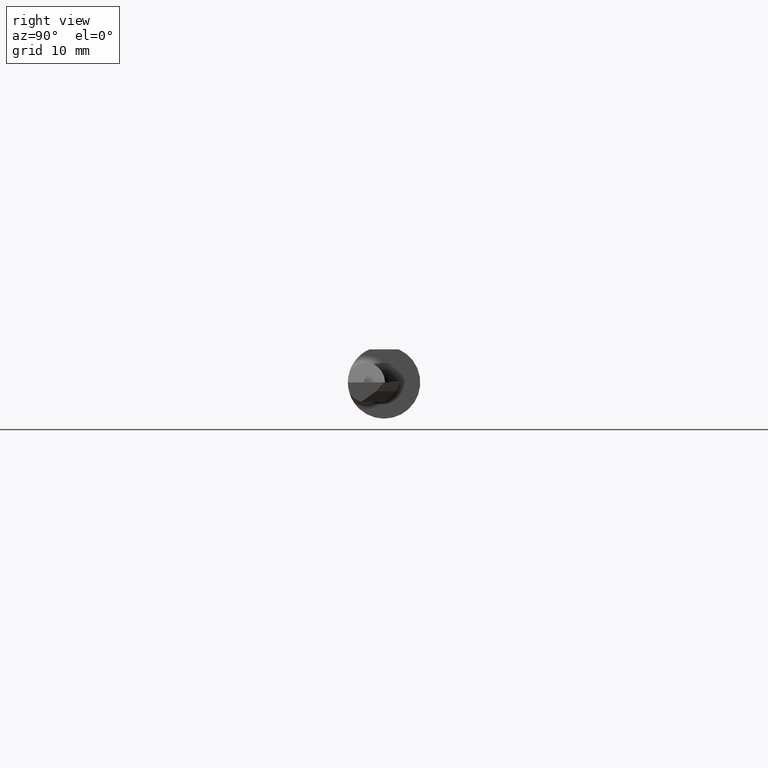
[diagram: clean part render]
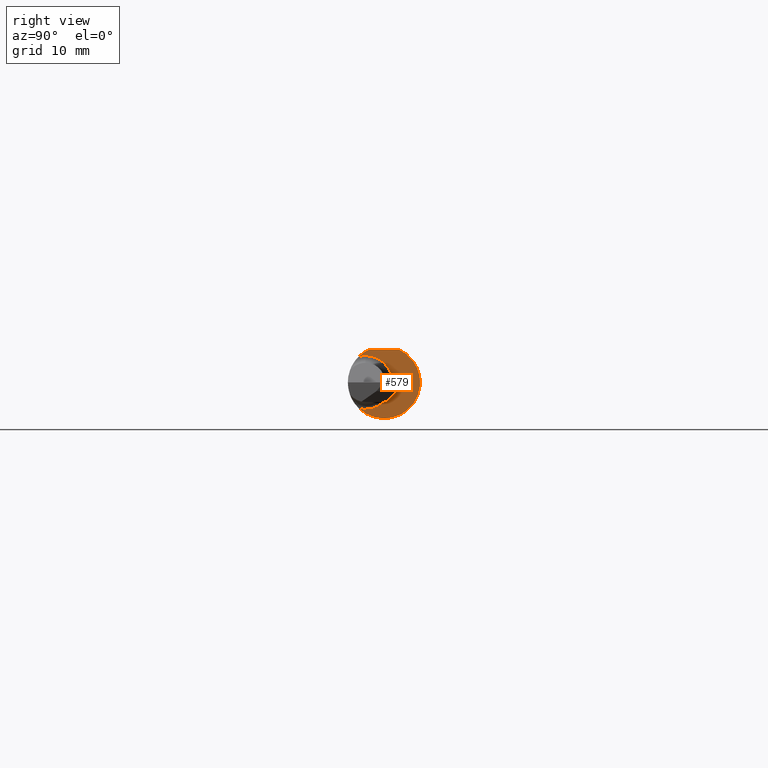
[diagram: same view with one face highlighted and labeled with its STEP entity id]
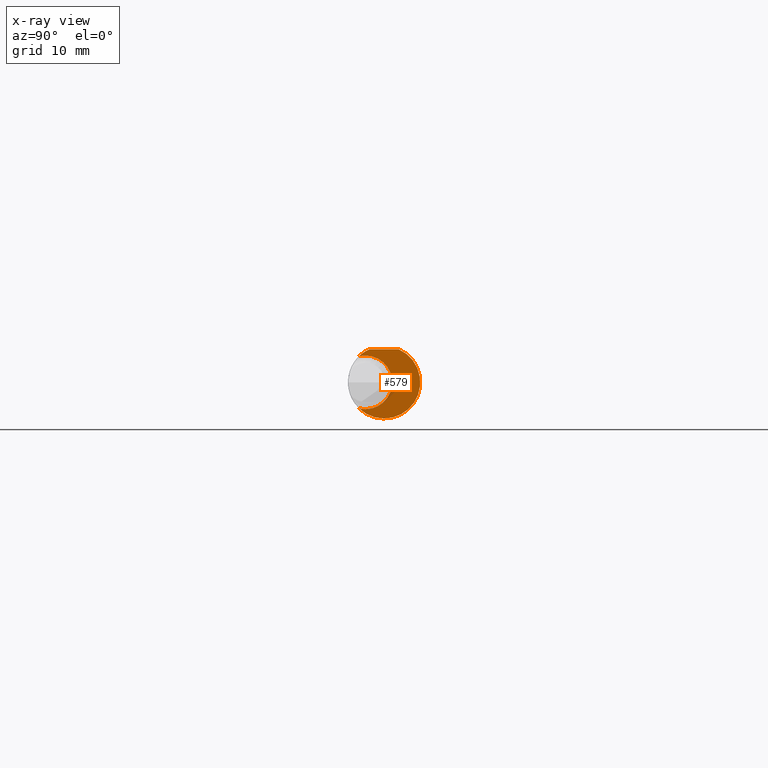
[diagram: x-ray of the same camera — body ghosted, the highlighted face saturated]
A machine part, right view. The second image highlights one B-rep face of the part: STEP entity #579.
The next image is the same camera in x-ray: the body ghosted, the highlighted face saturated — about 4% of this face is hidden behind the body in this view.
In plain terms, the highlighted planar face has unit normal (1, 0, 0).
Its self-contained STEP definition (entity closure, byte-faithful):
#4 = CIRCLE ( 'NONE', #106, 0.09250000000000002665 ) ;
#5 = AXIS2_PLACEMENT_3D ( 'NONE', #594, #137, #752 ) ;
#21 = VECTOR ( 'NONE', #738, 39.37007874015748143 ) ;
#24 = VERTEX_POINT ( 'NONE', #58 ) ;
#47 = ORIENTED_EDGE ( 'NONE', *, *, #850, .T. ) ;
#58 = CARTESIAN_POINT ( 'NONE',  ( 1.925000000000000044, -0.08680804195804191215, 0.08973230383429835200 ) ) ;
#68 = DIRECTION ( 'NONE',  ( 0.000000000000000000, 0.000000000000000000, -1.000000000000000000 ) ) ;
#73 = AXIS2_PLACEMENT_3D ( 'NONE', #600, #678, #526 ) ;
#101 = CARTESIAN_POINT ( 'NONE',  ( 1.925000000000000044, -0.06435000000000003217, 0.09250000000000002665 ) ) ;
#106 = AXIS2_PLACEMENT_3D ( 'NONE', #813, #434, #986 ) ;
#125 = ORIENTED_EDGE ( 'NONE', *, *, #596, .T. ) ;
#137 = DIRECTION ( 'NONE',  ( -1.000000000000000000, -0.000000000000000000, -0.000000000000000000 ) ) ;
#155 = CARTESIAN_POINT ( 'NONE',  ( 1.925000000000000044, 0.1000000000000000056, 0.1138500000000000068 ) ) ;
#164 = ORIENTED_EDGE ( 'NONE', *, *, #569, .T. ) ;
#205 = ORIENTED_EDGE ( 'NONE', *, *, #563, .T. ) ;
#220 = CARTESIAN_POINT ( 'NONE',  ( 1.925000000000000044, 0.000000000000000000, 0.000000000000000000 ) ) ;
#233 = DIRECTION ( 'NONE',  ( 1.000000000000000000, 0.000000000000000000, 0.000000000000000000 ) ) ;
#246 = CIRCLE ( 'NONE', #621, 0.1248500000000000026 ) ;
#257 = VERTEX_POINT ( 'NONE', #101 ) ;
#263 = CIRCLE ( 'NONE', #73, 0.09250000000000002665 ) ;
#269 = DIRECTION ( 'NONE',  ( 1.000000000000000000, 0.000000000000000000, 0.000000000000000000 ) ) ;
#367 = EDGE_CURVE ( 'NONE', #402, #24, #246, .T. ) ;
#381 = DIRECTION ( 'NONE',  ( 0.000000000000000000, 0.000000000000000000, -1.000000000000000000 ) ) ;
#402 = VERTEX_POINT ( 'NONE', #792 ) ;
#423 = CARTESIAN_POINT ( 'NONE',  ( 1.925000000000000044, 0.000000000000000000, 0.000000000000000000 ) ) ;
#431 = VERTEX_POINT ( 'NONE', #884 ) ;
#434 = DIRECTION ( 'NONE',  ( -1.000000000000000000, -0.000000000000000000, -0.000000000000000000 ) ) ;
#435 = VERTEX_POINT ( 'NONE', #946 ) ;
#440 = VERTEX_POINT ( 'NONE', #725 ) ;
#441 = FACE_OUTER_BOUND ( 'NONE', #942, .T. ) ;
#449 = CIRCLE ( 'NONE', #941, 0.1248500000000000026 ) ;
#481 = EDGE_CURVE ( 'NONE', #440, #431, #4, .T. ) ;
#508 = ORIENTED_EDGE ( 'NONE', *, *, #367, .T. ) ;
#526 = DIRECTION ( 'NONE',  ( 0.000000000000000000, 5.352945392990784272E-15, -1.000000000000000000 ) ) ;
#563 = EDGE_CURVE ( 'NONE', #431, #435, #449, .T. ) ;
#569 = EDGE_CURVE ( 'NONE', #24, #257, #263, .T. ) ;
#574 = DIRECTION ( 'NONE',  ( 0.000000000000000000, 0.000000000000000000, -1.000000000000000000 ) ) ;
#579 = ADVANCED_FACE ( 'NONE', ( #441 ), #747, .T. ) ;
#594 = CARTESIAN_POINT ( 'NONE',  ( 1.925000000000000044, -0.06435000000000003217, 0.000000000000000000 ) ) ;
#596 = EDGE_CURVE ( 'NONE', #435, #402, #603, .T. ) ;
#600 = CARTESIAN_POINT ( 'NONE',  ( 1.925000000000000044, -0.06435000000000003217, 0.000000000000000000 ) ) ;
#603 = LINE ( 'NONE', #155, #21 ) ;
#621 = AXIS2_PLACEMENT_3D ( 'NONE', #423, #269, #574 ) ;
#678 = DIRECTION ( 'NONE',  ( -1.000000000000000000, -0.000000000000000000, -0.000000000000000000 ) ) ;
#680 = ORIENTED_EDGE ( 'NONE', *, *, #481, .T. ) ;
#725 = CARTESIAN_POINT ( 'NONE',  ( 1.925000000000000044, -0.06435000000000003217, -0.09250000000000002665 ) ) ;
#738 = DIRECTION ( 'NONE',  ( 0.000000000000000000, -1.000000000000000000, 0.000000000000000000 ) ) ;
#747 = PLANE ( 'NONE',  #833 ) ;
#752 = DIRECTION ( 'NONE',  ( 0.000000000000000000, 0.000000000000000000, -1.000000000000000000 ) ) ;
#792 = CARTESIAN_POINT ( 'NONE',  ( 1.925000000000000044, -0.05124158467494927677, 0.1138500000000000068 ) ) ;
#813 = CARTESIAN_POINT ( 'NONE',  ( 1.925000000000000044, -0.06435000000000003217, 0.000000000000000000 ) ) ;
#833 = AXIS2_PLACEMENT_3D ( 'NONE', #834, #907, #68 ) ;
#834 = CARTESIAN_POINT ( 'NONE',  ( 1.925000000000000044, 0.2031499999999999972, 0.000000000000000000 ) ) ;
#850 = EDGE_CURVE ( 'NONE', #257, #440, #897, .T. ) ;
#884 = CARTESIAN_POINT ( 'NONE',  ( 1.925000000000000044, -0.08680804195804191215, -0.08973230383429835200 ) ) ;
#897 = CIRCLE ( 'NONE', #5, 0.09250000000000002665 ) ;
#907 = DIRECTION ( 'NONE',  ( 1.000000000000000000, 0.000000000000000000, 0.000000000000000000 ) ) ;
#941 = AXIS2_PLACEMENT_3D ( 'NONE', #220, #233, #381 ) ;
#942 = EDGE_LOOP ( 'NONE', ( #508, #164, #47, #680, #205, #125 ) ) ;
#946 = CARTESIAN_POINT ( 'NONE',  ( 1.925000000000000044, 0.05124158467494929065, 0.1138500000000000068 ) ) ;
#986 = DIRECTION ( 'NONE',  ( 0.000000000000000000, 0.000000000000000000, -1.000000000000000000 ) ) ;